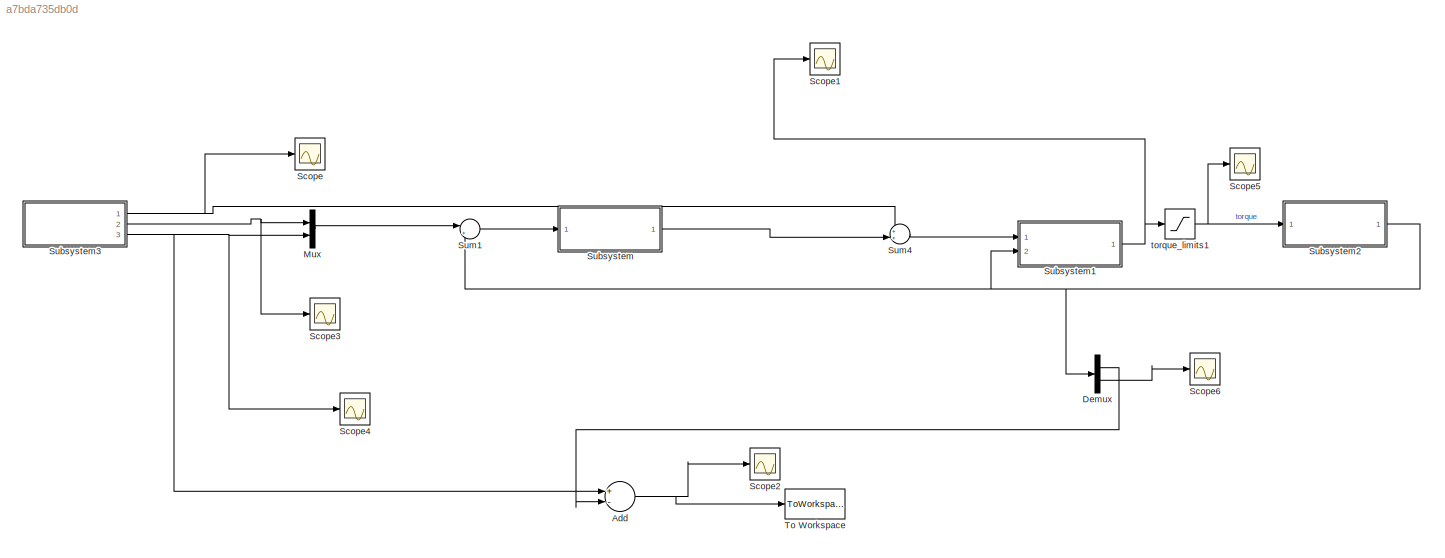
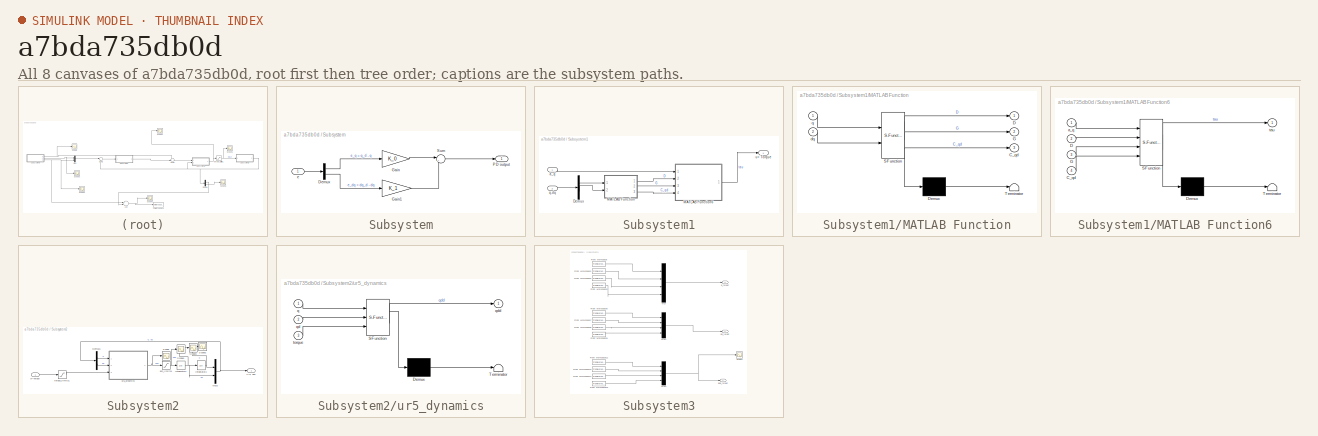
[diagram: thumbnail index - all 8 canvases of the model, root first then tree order]
MODEL slx_a7bda735db0d
KIND model
CONFIG AbsTol = auto
CONFIG EnableMultiTasking = on
CONFIG FixedStep = 0.004
CONFIG MaxStep = auto
CONFIG MinStep = auto
CONFIG RelTol = 1e-3
CONFIG SampleTimeConstraint = Unconstrained
CONFIG Solver = ode3
CONFIG SolverName = ode3
CONFIG StartTime = 0.0
CONFIG StopTime = 22
BLOCK [Sum] Add
  InputSameDT = off
  Inputs = +-
  OutDataTypeStr = Inherit: Inherit via internal rule
  Ports = [2, 1]
  SaturateOnIntegerOverflow = off
BLOCK [Demux] Demux
  DisplayOption = bar
  Outputs = 2
  Ports = [1, 2]
BLOCK [Mux] Mux
  DisplayOption = bar
  Inputs = 2
  Ports = [2, 1]
BLOCK [Scope] Scope
  Floating = off
  NumInputPorts = 1
  Ports = [1]
  ScopeSpecificationString = Simulink.scopes.TimeScopeBlockCfg('CurrentConfiguration', extmgr.ConfigurationSet(extmgr.Configuration('Core','General UI',true),extmgr.Configuration('Core','Source UI',true),extmgr.Configuration('Sources','WiredSimulink',true,'DataLoggingVariableName','ScopeData1'),extmgr.Configuration('Visuals','Time Domain',true,'SerializedDisplays',{struct('MinYLimReal','-0.91619','MaxYLimReal','7.56282','YLab...<+1424ch>
BLOCK [Scope] Scope1
  Floating = off
  NumInputPorts = 1
  Ports = [1]
  ScopeSpecificationString = Simulink.scopes.TimeScopeBlockCfg('CurrentConfiguration', extmgr.ConfigurationSet(extmgr.Configuration('Core','General UI',true),extmgr.Configuration('Core','Source UI',true),extmgr.Configuration('Sources','WiredSimulink',true,'DataLoggingVariableName','ScopeData1'),extmgr.Configuration('Visuals','Time Domain',true,'SerializedDisplays',{struct('MinYLimReal','-2.45739','MaxYLimReal','1.41904','YLab...<+1416ch>
BLOCK [Scope] Scope2
  Floating = off
  NumInputPorts = 1
  Ports = [1]
  ScopeSpecificationString = Simulink.scopes.TimeScopeBlockCfg('CurrentConfiguration', extmgr.ConfigurationSet(extmgr.Configuration('Core','General UI',true),extmgr.Configuration('Core','Source UI',true),extmgr.Configuration('Sources','WiredSimulink',true,'DataLoggingVariableName','ScopeData2'),extmgr.Configuration('Visuals','Time Domain',true,'SerializedDisplays',{struct('MinYLimReal','-5.37517','MaxYLimReal','0.59729','YLab...<+1415ch>
BLOCK [Scope] Scope3
  Floating = off
  NumInputPorts = 1
  Ports = [1]
  ScopeSpecificationString = Simulink.scopes.TimeScopeBlockCfg('CurrentConfiguration', extmgr.ConfigurationSet(extmgr.Configuration('Core','General UI',true),extmgr.Configuration('Core','Source UI',true),extmgr.Configuration('Sources','WiredSimulink',true,'DataLoggingVariableName','ScopeData3'),extmgr.Configuration('Visuals','Time Domain',true,'SerializedDisplays',{struct('MinYLimReal','-0.42093','MaxYLimReal','0.45676','YLab...<+1424ch>
BLOCK [Scope] Scope4
  Floating = off
  NumInputPorts = 1
  Ports = [1]
  ScopeSpecificationString = Simulink.scopes.TimeScopeBlockCfg('CurrentConfiguration', extmgr.ConfigurationSet(extmgr.Configuration('Core','General UI',true),extmgr.Configuration('Core','Source UI',true),extmgr.Configuration('Sources','WiredSimulink',true,'DataLoggingVariableName','ScopeData4'),extmgr.Configuration('Visuals','Time Domain',true,'SerializedDisplays',{struct('MinYLimReal','-1.51705','MaxYLimReal','1.56421','YLab...<+1424ch>
BLOCK [Scope] Scope5
  Floating = off
  NumInputPorts = 1
  Ports = [1]
  ScopeSpecificationString = Simulink.scopes.TimeScopeBlockCfg('CurrentConfiguration', extmgr.ConfigurationSet(extmgr.Configuration('Core','General UI',true),extmgr.Configuration('Core','Source UI',true),extmgr.Configuration('Sources','WiredSimulink',true,'DataLoggingVariableName','ScopeData5'),extmgr.Configuration('Visuals','Time Domain',true,'SerializedDisplays',{struct('MinYLimReal','-2.45739','MaxYLimReal','1.41904','YLab...<+1427ch>
BLOCK [Scope] Scope6
  Floating = off
  NumInputPorts = 1
  Ports = [1]
  ScopeSpecificationString = Simulink.scopes.TimeScopeBlockCfg('CurrentConfiguration', extmgr.ConfigurationSet(extmgr.Configuration('Core','General UI',true),extmgr.Configuration('Core','Source UI',true),extmgr.Configuration('Sources','WiredSimulink',true,'DataLoggingVariableName','ScopeData10'),extmgr.Configuration('Visuals','Time Domain',true),extmgr.Configuration('Tools','Plot Navigation',true),extmgr.Configuration('Tools'...<+41ch>
BLOCK [SubSystem] Subsystem
  Ports = [1, 1]
  RequestExecContextInheritance = off
BLOCK [Demux] Subsystem/Demux
  DisplayOption = bar
  Outputs = [4 4]
  Ports = [1, 2]
BLOCK [Gain] Subsystem/Gain
  Gain = K_0
  Multiplication = Matrix(K*u) (u vector)
  OutDataTypeStr = Inherit: Inherit via internal rule
  ParamDataTypeStr = Inherit: Inherit via internal rule
  SaturateOnIntegerOverflow = off
BLOCK [Gain] Subsystem/Gain1
  Gain = K_1
  Multiplication = Matrix(K*u) (u vector)
  OutDataTypeStr = Inherit: Inherit via internal rule
  ParamDataTypeStr = Inherit: Inherit via internal rule
  SaturateOnIntegerOverflow = off
BLOCK [Outport] Subsystem/PD output
  IconDisplay = Port number
BLOCK [Sum] Subsystem/Sum
  IconShape = round
  InputSameDT = off
  Inputs = |++
  OutDataTypeStr = Inherit: Inherit via internal rule
  Ports = [2, 1]
  SaturateOnIntegerOverflow = off
BLOCK [Inport] Subsystem/e
  IconDisplay = Port number
BLOCK [SubSystem] Subsystem1
  Ports = [2, 1]
  RequestExecContextInheritance = off
BLOCK [Demux] Subsystem1/Demux
  DisplayOption = bar
  Outputs = [4 4]
  Ports = [1, 2]
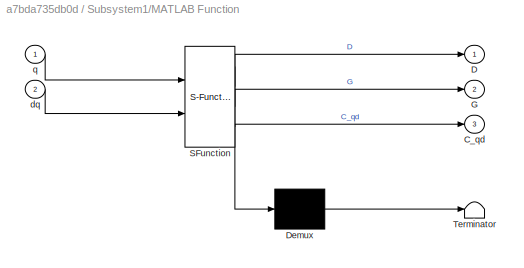
BLOCK [SubSystem] Subsystem1/MATLAB Function
  ErrorFcn = Stateflow.Translate.translate
  PermitHierarchicalResolution = ExplicitOnly
  Ports = [2, 3]
  RequestExecContextInheritance = off
  SFBlockType = MATLAB Function
  TreatAsAtomicUnit = on
BLOCK [Demux] Subsystem1/MATLAB Function/ Demux 
  Outputs = 1
  Ports = [1, 1]
BLOCK [S-Function] Subsystem1/MATLAB Function/ SFunction 
  EnableBusSupport = on
  FunctionName = sf_sfun
  PortCounts = [2 4]
  Ports = [2, 4]
  SFcnIsStateOwnerBlock = off
  SFunctionDeploymentMode = off
  Tag = Stateflow S-Function control2_irb 2
BLOCK [Terminator] Subsystem1/MATLAB Function/ Terminator 
BLOCK [Outport] Subsystem1/MATLAB Function/C_qd
  IconDisplay = Port number
  Port = 3
BLOCK [Outport] Subsystem1/MATLAB Function/D
  IconDisplay = Port number
BLOCK [Outport] Subsystem1/MATLAB Function/G
  IconDisplay = Port number
  Port = 2
BLOCK [Inport] Subsystem1/MATLAB Function/dq
  IconDisplay = Port number
  Port = 2
BLOCK [Inport] Subsystem1/MATLAB Function/q
  IconDisplay = Port number
BLOCK [SubSystem] Subsystem1/MATLAB Function6
  ErrorFcn = Stateflow.Translate.translate
  PermitHierarchicalResolution = ExplicitOnly
  Ports = [4, 1]
  RequestExecContextInheritance = off
  SFBlockType = MATLAB Function
  TreatAsAtomicUnit = on
BLOCK [Demux] Subsystem1/MATLAB Function6/ Demux 
  Outputs = 1
  Ports = [1, 1]
BLOCK [S-Function] Subsystem1/MATLAB Function6/ SFunction 
  EnableBusSupport = on
  FunctionName = sf_sfun
  PortCounts = [4 2]
  Ports = [4, 2]
  SFcnIsStateOwnerBlock = off
  SFunctionDeploymentMode = off
  Tag = Stateflow S-Function control2_irb 30
BLOCK [Terminator] Subsystem1/MATLAB Function6/ Terminator 
BLOCK [Inport] Subsystem1/MATLAB Function6/C_qd
  IconDisplay = Port number
  Port = 4
BLOCK [Inport] Subsystem1/MATLAB Function6/D
  IconDisplay = Port number
  Port = 2
BLOCK [Inport] Subsystem1/MATLAB Function6/G
  IconDisplay = Port number
  Port = 3
BLOCK [Inport] Subsystem1/MATLAB Function6/a_q
  IconDisplay = Port number
BLOCK [Outport] Subsystem1/MATLAB Function6/tau
  IconDisplay = Port number
BLOCK [Inport] Subsystem1/a_q
  IconDisplay = Port number
BLOCK [Inport] Subsystem1/q,dq
  IconDisplay = Port number
  Port = 2
BLOCK [Outport] Subsystem1/u= Torque
  IconDisplay = Port number
BLOCK [SubSystem] Subsystem2
  Ports = [1, 1]
  RequestExecContextInheritance = off
BLOCK [Demux] Subsystem2/Demux1
  DisplayOption = bar
  Outputs = [4 4]
  Ports = [1, 2]
BLOCK [Integrator] Subsystem2/Integrator2
  ContinuousStateAttributes = 'velocity'
  InitialCondition = Q_A
  LimitOutput = on
  LowerSaturationLimit = -[3.4000    3.4000    15    3.4000]
  Ports = [1, 1]
  UpperSaturationLimit = [3.4000    3.4000    15    3.4000]
BLOCK [Integrator] Subsystem2/Integrator3
  ContinuousStateAttributes = 'position'
  InitialCondition = Q_A
  LimitOutput = on
  LowerSaturationLimit = -[6.2832    6.2832    6.2832    6.2832]
  Ports = [1, 1]
  UpperSaturationLimit = [6.2832    6.2832    6.2832    6.2832]
BLOCK [Mux] Subsystem2/Mux2
  DisplayOption = bar
  Inputs = [4 4]
  Ports = [2, 1]
BLOCK [Scope] Subsystem2/Scope
  Floating = off
  NumInputPorts = 1
  Ports = [1]
  ScopeSpecificationString = Simulink.scopes.TimeScopeBlockCfg('CurrentConfiguration', extmgr.ConfigurationSet(extmgr.Configuration('Core','General UI',true),extmgr.Configuration('Core','Source UI',true),extmgr.Configuration('Sources','WiredSimulink',true,'DataLoggingVariableName','ScopeData6'),extmgr.Configuration('Visuals','Time Domain',true,'SerializedDisplays',{struct('MinYLimReal','-0.91619','MaxYLimReal','7.56282','YLab...<+1415ch>
BLOCK [Scope] Subsystem2/Scope1
  Floating = off
  NumInputPorts = 1
  Ports = [1]
  ScopeSpecificationString = Simulink.scopes.TimeScopeBlockCfg('CurrentConfiguration', extmgr.ConfigurationSet(extmgr.Configuration('Core','General UI',true),extmgr.Configuration('Core','Source UI',true),extmgr.Configuration('Sources','WiredSimulink',true,'DataLoggingVariableName','ScopeData7'),extmgr.Configuration('Visuals','Time Domain',true,'SerializedDisplays',{struct('MinYLimReal','-0.91619','MaxYLimReal','7.56282','YLab...<+1386ch>
BLOCK [Scope] Subsystem2/Scope2
  Floating = off
  NumInputPorts = 1
  Ports = [1]
  ScopeSpecificationString = Simulink.scopes.TimeScopeBlockCfg('CurrentConfiguration', extmgr.ConfigurationSet(extmgr.Configuration('Core','General UI',true),extmgr.Configuration('Core','Source UI',true),extmgr.Configuration('Sources','WiredSimulink',true,'DataLoggingVariableName','ScopeData8'),extmgr.Configuration('Visuals','Time Domain',true,'SerializedDisplays',{struct('MinYLimReal','-0.48521','MaxYLimReal','4.36685','YLab...<+1380ch>
BLOCK [Scope] Subsystem2/Scope3
  Floating = off
  NumInputPorts = 1
  Ports = [1]
  ScopeSpecificationString = Simulink.scopes.TimeScopeBlockCfg('CurrentConfiguration', extmgr.ConfigurationSet(extmgr.Configuration('Core','General UI',true),extmgr.Configuration('Core','Source UI',true),extmgr.Configuration('Sources','WiredSimulink',true,'DataLoggingVariableName','ScopeData9'),extmgr.Configuration('Visuals','Time Domain',true,'SerializedDisplays',{struct('MinYLimReal','-0.2044','MaxYLimReal','0.676','YLabelR...<+1374ch>
BLOCK [Saturate] Subsystem2/acc_limits1
  InputPortMap = u0
  LowerLimit = -a_max
  Ports = [1, 1]
  UpperLimit = a_max
BLOCK [Saturate] Subsystem2/torque_limits1
  InputPortMap = u0
  LowerLimit = -[150   150   150   28]
  Ports = [1, 1]
  UpperLimit = [150   150   150   28]
BLOCK [Inport] Subsystem2/u= Torque
  IconDisplay = Port number
BLOCK [SubSystem] Subsystem2/ur5_dynamics
  ErrorFcn = Stateflow.Translate.translate
  PermitHierarchicalResolution = ExplicitOnly
  Ports = [3, 1]
  RequestExecContextInheritance = off
  SFBlockType = MATLAB Function
  TreatAsAtomicUnit = on
BLOCK [Demux] Subsystem2/ur5_dynamics/ Demux 
  Outputs = 1
  Ports = [1, 1]
BLOCK [S-Function] Subsystem2/ur5_dynamics/ SFunction 
  EnableBusSupport = on
  FunctionName = sf_sfun
  PortCounts = [3 2]
  Ports = [3, 2]
  SFcnIsStateOwnerBlock = off
  SFunctionDeploymentMode = off
  Tag = Stateflow S-Function control2_irb 25
BLOCK [Terminator] Subsystem2/ur5_dynamics/ Terminator 
BLOCK [Inport] Subsystem2/ur5_dynamics/q
  IconDisplay = Port number
BLOCK [Inport] Subsystem2/ur5_dynamics/qd
  IconDisplay = Port number
  Port = 2
BLOCK [Outport] Subsystem2/ur5_dynamics/qdd
  IconDisplay = Port number
BLOCK [Inport] Subsystem2/ur5_dynamics/torque
  IconDisplay = Port number
  Port = 3
BLOCK [Outport] Subsystem2/y= q, dq1
  IconDisplay = Port number
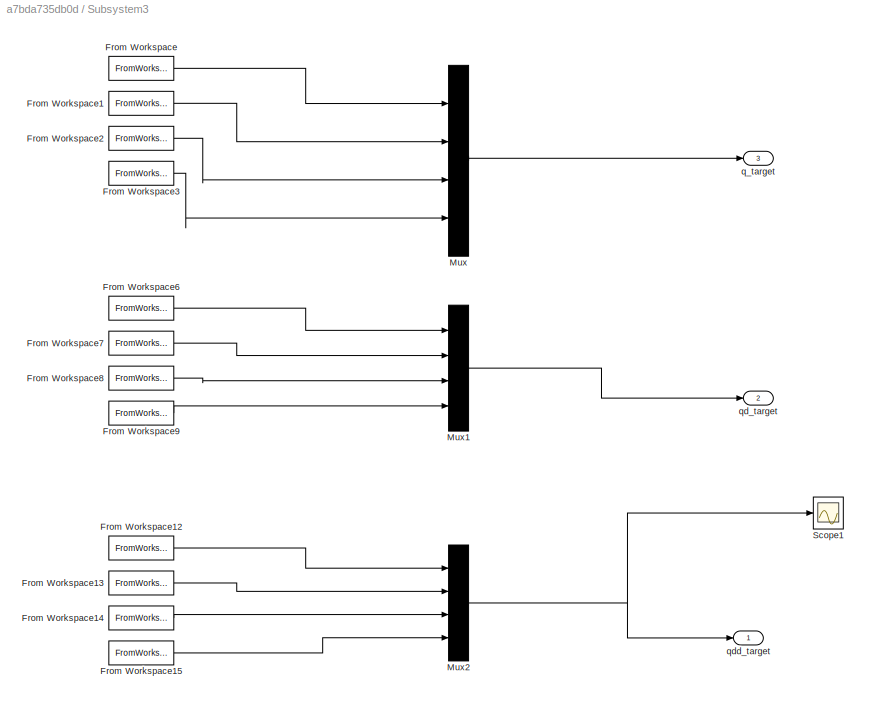
BLOCK [SubSystem] Subsystem3
  Ports = [0, 3]
  RequestExecContextInheritance = off
BLOCK [FromWorkspace] Subsystem3/From Workspace
  SampleTime = 0
  VariableName = signal1
  ZeroCross = on
BLOCK [FromWorkspace] Subsystem3/From Workspace1
  SampleTime = 0
  VariableName = signal2
  ZeroCross = on
BLOCK [FromWorkspace] Subsystem3/From Workspace12
  SampleTime = 0
  VariableName = signal1_a
  ZeroCross = on
BLOCK [FromWorkspace] Subsystem3/From Workspace13
  SampleTime = 0
  VariableName = signal2_a
  ZeroCross = on
BLOCK [FromWorkspace] Subsystem3/From Workspace14
  SampleTime = 0
  VariableName = signal3_a
  ZeroCross = on
BLOCK [FromWorkspace] Subsystem3/From Workspace15
  SampleTime = 0
  VariableName = signal4_a
  ZeroCross = on
BLOCK [FromWorkspace] Subsystem3/From Workspace2
  SampleTime = 0
  VariableName = signal3
  ZeroCross = on
BLOCK [FromWorkspace] Subsystem3/From Workspace3
  SampleTime = 0
  VariableName = signal4
  ZeroCross = on
BLOCK [FromWorkspace] Subsystem3/From Workspace6
  SampleTime = 0
  VariableName = signal1_v
  ZeroCross = on
BLOCK [FromWorkspace] Subsystem3/From Workspace7
  SampleTime = 0
  VariableName = signal2_v
  ZeroCross = on
BLOCK [FromWorkspace] Subsystem3/From Workspace8
  SampleTime = 0
  VariableName = signal3_v
  ZeroCross = on
BLOCK [FromWorkspace] Subsystem3/From Workspace9
  SampleTime = 0
  VariableName = signal4_v
  ZeroCross = on
BLOCK [Mux] Subsystem3/Mux
  DisplayOption = bar
  Ports = [4, 1]
BLOCK [Mux] Subsystem3/Mux1
  DisplayOption = bar
  Ports = [4, 1]
BLOCK [Mux] Subsystem3/Mux2
  DisplayOption = bar
  Ports = [4, 1]
BLOCK [Scope] Subsystem3/Scope1
  Floating = off
  NumInputPorts = 1
  Ports = [1]
  ScopeSpecificationString = Simulink.scopes.TimeScopeBlockCfg('CurrentConfiguration', extmgr.ConfigurationSet(extmgr.Configuration('Core','General UI',true),extmgr.Configuration('Core','Source UI',true),extmgr.Configuration('Sources','WiredSimulink',true,'DataLoggingVariableName','ScopeData5'),extmgr.Configuration('Visuals','Time Domain',true,'SerializedDisplays',{struct('MinYLimReal','-0.13184','MaxYLimReal','0.26185','YLab...<+1470ch>
BLOCK [Outport] Subsystem3/q_target
  IconDisplay = Port number
  Port = 3
BLOCK [Outport] Subsystem3/qd_target
  IconDisplay = Port number
  Port = 2
BLOCK [Outport] Subsystem3/qdd_target
  IconDisplay = Port number
BLOCK [Sum] Sum1
  IconShape = round
  InputSameDT = off
  Inputs = |+-
  OutDataTypeStr = Inherit: Inherit via internal rule
  Ports = [2, 1]
  SaturateOnIntegerOverflow = off
BLOCK [Sum] Sum4
  IconShape = round
  InputSameDT = off
  Inputs = ++|
  OutDataTypeStr = Inherit: Inherit via internal rule
  Ports = [2, 1]
  SaturateOnIntegerOverflow = off
BLOCK [ToWorkspace] To Workspace
  FixptAsFi = on
  MaxDataPoints = inf
  Ports = [1]
  SampleTime = -1
  SaveFormat = Timeseries
  VariableName = erro2
BLOCK [Saturate] torque_limits1
  InputPortMap = u0
  LowerLimit = -torque_max
  Ports = [1, 1]
  UpperLimit = torque_max
NET Add:1 -> Scope2:1, To Workspace:1
LINE Demux:1 -> Add:2
LINE Demux:2 -> Scope6:1
LINE Mux:1 -> Sum1:1
LINE Subsystem/Demux:1 -> Subsystem/Gain:1
LINE Subsystem/Demux:2 -> Subsystem/Gain1:1
LINE Subsystem/Gain1:1 -> Subsystem/Sum:2
LINE Subsystem/Gain:1 -> Subsystem/Sum:1
LINE Subsystem/Sum:1 -> Subsystem/PD output:1
LINE Subsystem/e:1 -> Subsystem/Demux:1
LINE Subsystem1/Demux:1 -> Subsystem1/MATLAB Function:1
LINE Subsystem1/Demux:2 -> Subsystem1/MATLAB Function:2
LINE Subsystem1/MATLAB Function6:1 -> Subsystem1/u= Torque:1
LINE Subsystem1/MATLAB Function:1 -> Subsystem1/MATLAB Function6:2
LINE Subsystem1/MATLAB Function:2 -> Subsystem1/MATLAB Function6:3
LINE Subsystem1/MATLAB Function:3 -> Subsystem1/MATLAB Function6:4
LINE Subsystem1/a_q:1 -> Subsystem1/MATLAB Function6:1
LINE Subsystem1/q,dq:1 -> Subsystem1/Demux:1
NET Subsystem1:1 -> Scope1:1, torque_limits1:1
LINE Subsystem2/Demux1:1 -> Subsystem2/ur5_dynamics:1
LINE Subsystem2/Demux1:2 -> Subsystem2/ur5_dynamics:2
NET Subsystem2/Integrator2:1 -> Subsystem2/Integrator3:1, Subsystem2/Mux2:2, Subsystem2/Scope3:1
NET Subsystem2/Integrator3:1 -> Subsystem2/Mux2:1, Subsystem2/Scope2:1
NET Subsystem2/Mux2:1 -> Subsystem2/Demux1:1, Subsystem2/y= q, dq1:1
NET Subsystem2/acc_limits1:1 -> Subsystem2/Integrator2:1, Subsystem2/Scope1:1
LINE Subsystem2/torque_limits1:1 -> Subsystem2/ur5_dynamics:3
LINE Subsystem2/u= Torque:1 -> Subsystem2/torque_limits1:1
NET Subsystem2/ur5_dynamics:1 -> Subsystem2/Scope:1, Subsystem2/acc_limits1:1
NET Subsystem2:1 -> Demux:1, Subsystem1:2, Sum1:2
LINE Subsystem3/From Workspace12:1 -> Subsystem3/Mux2:1
LINE Subsystem3/From Workspace13:1 -> Subsystem3/Mux2:2
LINE Subsystem3/From Workspace14:1 -> Subsystem3/Mux2:3
LINE Subsystem3/From Workspace15:1 -> Subsystem3/Mux2:4
LINE Subsystem3/From Workspace1:1 -> Subsystem3/Mux:2
LINE Subsystem3/From Workspace2:1 -> Subsystem3/Mux:3
LINE Subsystem3/From Workspace3:1 -> Subsystem3/Mux:4
LINE Subsystem3/From Workspace6:1 -> Subsystem3/Mux1:1
LINE Subsystem3/From Workspace7:1 -> Subsystem3/Mux1:2
LINE Subsystem3/From Workspace8:1 -> Subsystem3/Mux1:3
LINE Subsystem3/From Workspace9:1 -> Subsystem3/Mux1:4
LINE Subsystem3/From Workspace:1 -> Subsystem3/Mux:1
LINE Subsystem3/Mux1:1 -> Subsystem3/qd_target:1
NET Subsystem3/Mux2:1 -> Subsystem3/Scope1:1, Subsystem3/qdd_target:1
LINE Subsystem3/Mux:1 -> Subsystem3/q_target:1
NET Subsystem3:1 -> Scope:1, Sum4:1
NET Subsystem3:2 -> Mux:1, Scope3:1
NET Subsystem3:3 -> Add:1, Mux:2, Scope4:1
LINE Subsystem:1 -> Sum4:2
LINE Sum1:1 -> Subsystem:1
LINE Sum4:1 -> Subsystem1:1
NET torque_limits1:1 -> Scope5:1, Subsystem2:1
note: NET lines group one-source signal fan-out (src -> all destinations, sorted); 1:1 wires keep LINE
CHART Subsystem1/MATLAB Function states=1 transitions=1
  STATE_LABEL 'eML_blk_kernel()'
  STATE_LABEL 'SCRIPT:\nfunction [ D, G, C_qd ] = IRB_Matrices( q, dq)\n[ D, G, C_qd ] = IRB_getMatrices( q, dq );\n\n\n'
CHART Subsystem2/ur5_dynamics states=1 transitions=1
  STATE_LABEL 'eML_blk_kernel()'
  STATE_LABEL 'SCRIPT:\nfunction qdd = IRB_dynamics( q, qd, torque )\n%#codegen\n%Returns the acceleration of the manipulator based on its dynamics\n[ D, G, CDq ] = IRB_getMatrices( q, qd );\n\nqdd = D \\ (torque - CDq - G);\n\n\n'
CHART Subsystem1/MATLAB Function6 states=1 transitions=1
  STATE_LABEL 'eML_blk_kernel()'
  STATE_LABEL 'SCRIPT:\nfunction tau = IRB_invDynamics(a_q, D, G, C_qd)\n\ntau = D*a_q + C_qd + G;\n\n\n\n'
